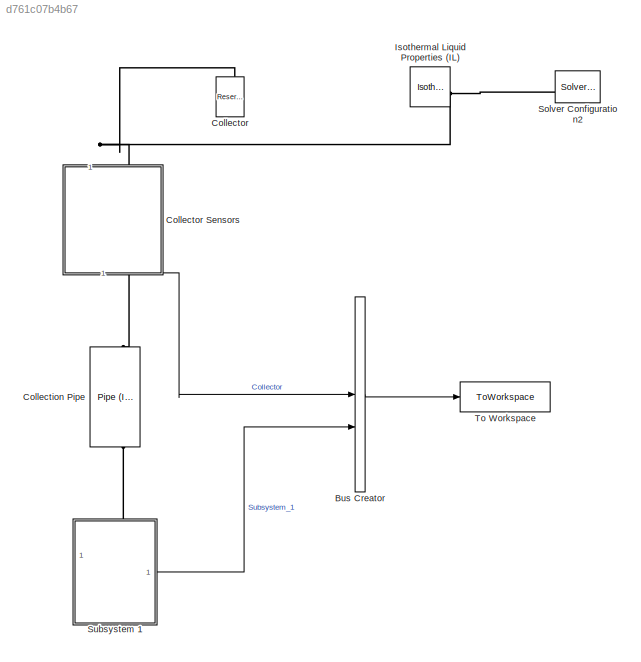
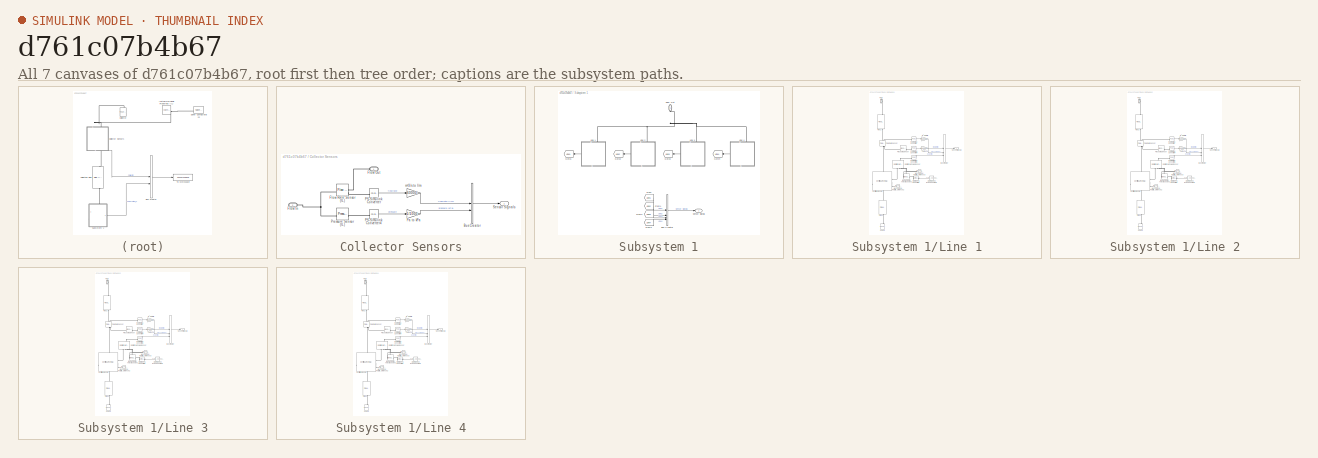
[diagram: thumbnail index - all 7 canvases of the model, root first then tree order]
MODEL slx_d761c07b4b67
KIND model
CONFIG AbsTol = 1e-3
CONFIG EnableMultiTasking = on
CONFIG FixedStep = auto
CONFIG InitFcn = load("smallscale_sample.mat")
CONFIG MaxStep = 1
CONFIG MinStep = auto
CONFIG RelTol = 1e-3
CONFIG SampleTimeConstraint = Unconstrained
CONFIG SolverName = VariableStepAuto
CONFIG StartTime = 0.0
CONFIG StopTime = 200
BLOCK [BusCreator] Bus Creator
  DisplayOption = bar
  InheritFromInputs = on
  Inputs = 2
BLOCK [Reference] Collection Pipe  REF=SimscapeFluids_lib/Isothermal Liquid/Pipes & Fittings/Pipe (IL)
  NameLocation = right
  SourceBlock = SimscapeFluids_lib/Isothermal Liquid/Pipes & Fittings/Pipe (IL)
  SourceType = Pipe (IL)
BLOCK [Reference] Collector  REF=fl_lib/Isothermal Liquid/Elements/Reservoir (IL)
  NameLocation = right
  SourceBlock = fl_lib/Isothermal Liquid/Elements/Reservoir (IL)
  SourceType = Reservoir (IL)
BLOCK [SubSystem] Collector Sensors
  NameLocation = left
  PortSchema = {"entries":[{"content":{"sides":[{"content":{"connectorIds":["LConn1"]},"type":"ConnectorPlacement.EquallySpacedRectSide","uuid":"9a2000d6-2d17-445f-a03d-cbfdaefbb972"},{"content":{"connectorIds":["RConn1"],"side":"RIGHT"},"type":"ConnectorPlacement.EquallySpacedRectSide","uuid":"ed958604-0480-4a1a-a86c-9fef878a0994"},{"content":{"side":"TOP"},"type":"ConnectorPlacement.EquallySpacedRectSide","uui...<+377ch>
BLOCK [BusCreator] Collector Sensors/Bus Creator
  DisplayOption = bar
  InheritFromInputs = on
  Inputs = 2
BLOCK [PMIOPort] Collector Sensors/Flow In
  Port = 2
  Side = Right
BLOCK [PMIOPort] Collector Sensors/Flow Out
  Side = Left
BLOCK [Reference] Collector Sensors/Flow Rate Sensor (IL)  REF=fl_lib/Isothermal Liquid/Sensors/Flow Rate Sensor
(IL)
  SourceBlock = fl_lib/Isothermal Liquid/Sensors/Flow Rate Sensor\n(IL)
  SourceType = Flow Rate Sensor\n(IL)
BLOCK [Reference] Collector Sensors/PS-Simulink Converter  REF=nesl_utility/PS-Simulink
Converter
  NameLocation = top
  SourceBlock = nesl_utility/PS-Simulink\nConverter
  SourceType = PS-Simulink\nConverter
BLOCK [Reference] Collector Sensors/PS-Simulink Converter4  REF=nesl_utility/PS-Simulink
Converter
  NameLocation = top
  SourceBlock = nesl_utility/PS-Simulink\nConverter
  SourceType = PS-Simulink\nConverter
BLOCK [Gain] Collector Sensors/Pa to kPa
  Gain = 1/1000
BLOCK [Reference] Collector Sensors/Pressure Sensor (IL)  REF=fl_lib/Isothermal Liquid/Sensors/Pressure Sensor (IL)
  SourceBlock = fl_lib/Isothermal Liquid/Sensors/Pressure Sensor (IL)
  SourceType = Pressure Sensor (IL)
BLOCK [Outport] Collector Sensors/Sensor Signals
BLOCK [Gain] Collector Sensors/m^3//s to l//m
  Gain = 60000
BLOCK [Reference] Isothermal Liquid Properties (IL)  REF=fl_lib/Isothermal Liquid/Utilities/Isothermal Liquid
Properties (IL)
  SourceBlock = fl_lib/Isothermal Liquid/Utilities/Isothermal Liquid\nProperties (IL)
  SourceType = Isothermal Liquid\nProperties (IL)
BLOCK [Reference] Solver Configuration2  REF=nesl_utility/Solver
Configuration
  SourceBlock = nesl_utility/Solver\nConfiguration
  SourceType = Solver\nConfiguration
BLOCK [SubSystem] Subsystem 1
  NameLocation = left
  PortSchema = {"entries":[{"content":{"sides":[{"content":{},"type":"ConnectorPlacement.EquallySpacedRectSide","uuid":"b516d03a-2269-47fc-9f64-c7351457ded4"},{"content":{"connectorIds":["Out1"],"side":"RIGHT"},"type":"ConnectorPlacement.EquallySpacedRectSide","uuid":"88a6b3e7-f300-486e-888d-e91ea018f8f8"},{"content":{"connectorIds":["LConn1"],"side":"TOP"},"type":"ConnectorPlacement.EquallySpacedRectSide","uuid...<+226ch>
BLOCK [BusCreator] Subsystem 1/Bus Creator
  DisplayOption = bar
  InheritFromInputs = on
  Inputs = 4
  NameLocation = top
BLOCK [PMIOPort] Subsystem 1/Flow Out
  NameLocation = right
  Side = Left
BLOCK [From] Subsystem 1/From
  GotoTag = Line1
BLOCK [From] Subsystem 1/From1
  GotoTag = Line2
BLOCK [From] Subsystem 1/From2
  GotoTag = Line3
BLOCK [From] Subsystem 1/From3
  GotoTag = Line4
BLOCK [Goto] Subsystem 1/Goto1
  GotoTag = Line1
BLOCK [Goto] Subsystem 1/Goto2
  GotoTag = Line2
BLOCK [Goto] Subsystem 1/Goto3
  GotoTag = Line3
BLOCK [Goto] Subsystem 1/Goto4
  GotoTag = Line4
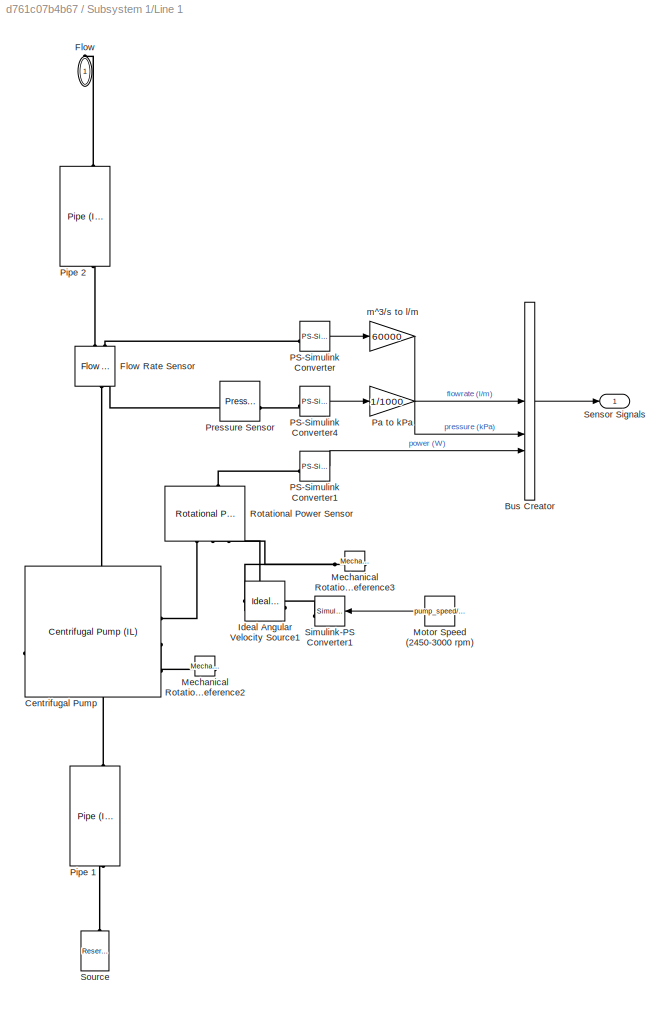
BLOCK [SubSystem] Subsystem 1/Line 1
  PortSchema = {"entries":[{"content":{"sides":[{"content":{},"type":"ConnectorPlacement.EquallySpacedRectSide","uuid":"b3564357-8f52-4949-91c1-42582344ea16"},{"content":{"connectorIds":["RConn1"],"side":"RIGHT"},"type":"ConnectorPlacement.EquallySpacedRectSide","uuid":"3df6ff4b-c089-47d9-9218-1d5835660c11"},{"content":{"connectorIds":["Out1"],"side":"TOP"},"type":"ConnectorPlacement.EquallySpacedRectSide","uuid...<+226ch>  <repeated x4 — deduplicated; at blocks: Line 1, Line 2, Line 3, Line 4>
BLOCK [BusCreator] Subsystem 1/Line 1/Bus Creator
  DisplayOption = bar
  InheritFromInputs = on
  Inputs = 3
BLOCK [Reference] Subsystem 1/Line 1/Centrifugal Pump  REF=SimscapeFluids_lib/Isothermal Liquid/Pumps & Motors/Centrifugal Pump
(IL)
  AttributesFormatString = Ebara:EVMS(L)1 10/0.55*
  SourceBlock = SimscapeFluids_lib/Isothermal Liquid/Pumps & Motors/Centrifugal Pump\n(IL)
  SourceType = Centrifugal Pump\n(IL)
  Tag = {'toolbox/physmod/fluids/fluids/SimscapeFluids_lib_parts';'Isothermal_Liquid/Pumps_and_Motors/Centrifugal_Pump__IL_/Ebara/EVMS_L_1_10_0_55_.xml'}
BLOCK [PMIOPort] Subsystem 1/Line 1/Flow
  NameLocation = right
  Side = Right
BLOCK [Reference] Subsystem 1/Line 1/Flow Rate Sensor  REF=fl_lib/Isothermal Liquid/Sensors/Flow Rate Sensor
(IL)
  NameLocation = left
  SourceBlock = fl_lib/Isothermal Liquid/Sensors/Flow Rate Sensor\n(IL)
  SourceType = Flow Rate Sensor\n(IL)
BLOCK [Reference] Subsystem 1/Line 1/Ideal Angular Velocity Source1  REF=fl_lib/Mechanical/Mechanical Sources/Ideal Angular
Velocity Source
  NameLocation = top
  SourceBlock = fl_lib/Mechanical/Mechanical Sources/Ideal Angular\nVelocity Source
  SourceType = Ideal Angular\nVelocity Source
BLOCK [Reference] Subsystem 1/Line 1/Mechanical Rotational Reference2  REF=fl_lib/Mechanical/Rotational Elements/Mechanical
Rotational Reference
  NameLocation = top
  SourceBlock = fl_lib/Mechanical/Rotational Elements/Mechanical\nRotational Reference
  SourceType = Mechanical\nRotational Reference
BLOCK [Reference] Subsystem 1/Line 1/Mechanical Rotational Reference3  REF=fl_lib/Mechanical/Rotational Elements/Mechanical
Rotational Reference
  NameLocation = top
  SourceBlock = fl_lib/Mechanical/Rotational Elements/Mechanical\nRotational Reference
  SourceType = Mechanical\nRotational Reference
BLOCK [Constant] Subsystem 1/Line 1/Motor Speed (2450-3000 rpm)
  Value = pump_speed/60
BLOCK [Reference] Subsystem 1/Line 1/PS-Simulink Converter  REF=nesl_utility/PS-Simulink
Converter
  NameLocation = top
  SourceBlock = nesl_utility/PS-Simulink\nConverter
  SourceType = PS-Simulink\nConverter
BLOCK [Reference] Subsystem 1/Line 1/PS-Simulink Converter1  REF=nesl_utility/PS-Simulink
Converter
  NameLocation = top
  SourceBlock = nesl_utility/PS-Simulink\nConverter
  SourceType = PS-Simulink\nConverter
BLOCK [Reference] Subsystem 1/Line 1/PS-Simulink Converter4  REF=nesl_utility/PS-Simulink
Converter
  NameLocation = top
  SourceBlock = nesl_utility/PS-Simulink\nConverter
  SourceType = PS-Simulink\nConverter
BLOCK [Gain] Subsystem 1/Line 1/Pa to kPa
  Gain = 1/1000
  NameLocation = top
BLOCK [Reference] Subsystem 1/Line 1/Pipe 1  REF=SimscapeFluids_lib/Isothermal Liquid/Pipes & Fittings/Pipe (IL)
  NameLocation = right
  SourceBlock = SimscapeFluids_lib/Isothermal Liquid/Pipes & Fittings/Pipe (IL)
  SourceType = Pipe (IL)
BLOCK [Reference] Subsystem 1/Line 1/Pipe 2  REF=SimscapeFluids_lib/Isothermal Liquid/Pipes & Fittings/Pipe (IL)
  NameLocation = left
  SourceBlock = SimscapeFluids_lib/Isothermal Liquid/Pipes & Fittings/Pipe (IL)
  SourceType = Pipe (IL)
BLOCK [Reference] Subsystem 1/Line 1/Pressure Sensor  REF=fl_lib/Isothermal Liquid/Sensors/Pressure Sensor (IL)
  NameLocation = top
  SourceBlock = fl_lib/Isothermal Liquid/Sensors/Pressure Sensor (IL)
  SourceType = Pressure Sensor (IL)
BLOCK [Reference] Subsystem 1/Line 1/Rotational Power Sensor   REF=sdl_lib/Sensors/Rotational Power
Sensor
  NameLocation = right
  SourceBlock = sdl_lib/Sensors/Rotational Power\nSensor
  SourceType = Rotational Power\nSensor
BLOCK [Outport] Subsystem 1/Line 1/Sensor Signals
  NameLocation = top
BLOCK [Reference] Subsystem 1/Line 1/Simulink-PS Converter1  REF=nesl_utility/Simulink-PS
Converter
  SourceBlock = nesl_utility/Simulink-PS\nConverter
  SourceType = Simulink-PS\nConverter
BLOCK [Reference] Subsystem 1/Line 1/Source  REF=fl_lib/Isothermal Liquid/Elements/Reservoir (IL)
  NameLocation = right
  SourceBlock = fl_lib/Isothermal Liquid/Elements/Reservoir (IL)
  SourceType = Reservoir (IL)
BLOCK [Gain] Subsystem 1/Line 1/m^3//s to l//m
  Gain = 60000
  NameLocation = top
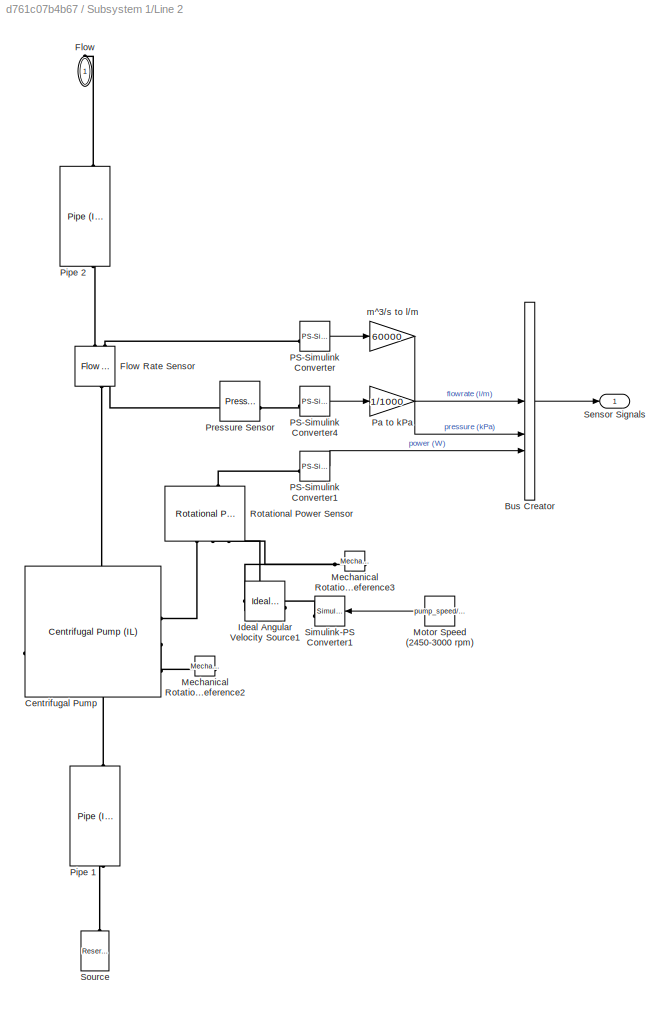
BLOCK [SubSystem] Subsystem 1/Line 2
BLOCK [BusCreator] Subsystem 1/Line 2/Bus Creator
  DisplayOption = bar
  InheritFromInputs = on
  Inputs = 3
BLOCK [Reference] Subsystem 1/Line 2/Centrifugal Pump  REF=SimscapeFluids_lib/Isothermal Liquid/Pumps & Motors/Centrifugal Pump
(IL)
  AttributesFormatString = Ebara:EVMS(L)1 10/0.55*
  SourceBlock = SimscapeFluids_lib/Isothermal Liquid/Pumps & Motors/Centrifugal Pump\n(IL)
  SourceType = Centrifugal Pump\n(IL)
  Tag = {'toolbox/physmod/fluids/fluids/SimscapeFluids_lib_parts';'Isothermal_Liquid/Pumps_and_Motors/Centrifugal_Pump__IL_/Ebara/EVMS_L_1_10_0_55_.xml'}
BLOCK [PMIOPort] Subsystem 1/Line 2/Flow
  NameLocation = right
  Side = Right
BLOCK [Reference] Subsystem 1/Line 2/Flow Rate Sensor  REF=fl_lib/Isothermal Liquid/Sensors/Flow Rate Sensor
(IL)
  NameLocation = left
  SourceBlock = fl_lib/Isothermal Liquid/Sensors/Flow Rate Sensor\n(IL)
  SourceType = Flow Rate Sensor\n(IL)
BLOCK [Reference] Subsystem 1/Line 2/Ideal Angular Velocity Source1  REF=fl_lib/Mechanical/Mechanical Sources/Ideal Angular
Velocity Source
  NameLocation = top
  SourceBlock = fl_lib/Mechanical/Mechanical Sources/Ideal Angular\nVelocity Source
  SourceType = Ideal Angular\nVelocity Source
BLOCK [Reference] Subsystem 1/Line 2/Mechanical Rotational Reference2  REF=fl_lib/Mechanical/Rotational Elements/Mechanical
Rotational Reference
  NameLocation = top
  SourceBlock = fl_lib/Mechanical/Rotational Elements/Mechanical\nRotational Reference
  SourceType = Mechanical\nRotational Reference
BLOCK [Reference] Subsystem 1/Line 2/Mechanical Rotational Reference3  REF=fl_lib/Mechanical/Rotational Elements/Mechanical
Rotational Reference
  NameLocation = top
  SourceBlock = fl_lib/Mechanical/Rotational Elements/Mechanical\nRotational Reference
  SourceType = Mechanical\nRotational Reference
BLOCK [Constant] Subsystem 1/Line 2/Motor Speed (2450-3000 rpm)
  Value = pump_speed/60
BLOCK [Reference] Subsystem 1/Line 2/PS-Simulink Converter  REF=nesl_utility/PS-Simulink
Converter
  NameLocation = top
  SourceBlock = nesl_utility/PS-Simulink\nConverter
  SourceType = PS-Simulink\nConverter
BLOCK [Reference] Subsystem 1/Line 2/PS-Simulink Converter1  REF=nesl_utility/PS-Simulink
Converter
  NameLocation = top
  SourceBlock = nesl_utility/PS-Simulink\nConverter
  SourceType = PS-Simulink\nConverter
BLOCK [Reference] Subsystem 1/Line 2/PS-Simulink Converter4  REF=nesl_utility/PS-Simulink
Converter
  NameLocation = top
  SourceBlock = nesl_utility/PS-Simulink\nConverter
  SourceType = PS-Simulink\nConverter
BLOCK [Gain] Subsystem 1/Line 2/Pa to kPa
  Gain = 1/1000
  NameLocation = top
BLOCK [Reference] Subsystem 1/Line 2/Pipe 1  REF=SimscapeFluids_lib/Isothermal Liquid/Pipes & Fittings/Pipe (IL)
  NameLocation = right
  SourceBlock = SimscapeFluids_lib/Isothermal Liquid/Pipes & Fittings/Pipe (IL)
  SourceType = Pipe (IL)
BLOCK [Reference] Subsystem 1/Line 2/Pipe 2  REF=SimscapeFluids_lib/Isothermal Liquid/Pipes & Fittings/Pipe (IL)
  NameLocation = left
  SourceBlock = SimscapeFluids_lib/Isothermal Liquid/Pipes & Fittings/Pipe (IL)
  SourceType = Pipe (IL)
BLOCK [Reference] Subsystem 1/Line 2/Pressure Sensor  REF=fl_lib/Isothermal Liquid/Sensors/Pressure Sensor (IL)
  NameLocation = top
  SourceBlock = fl_lib/Isothermal Liquid/Sensors/Pressure Sensor (IL)
  SourceType = Pressure Sensor (IL)
BLOCK [Reference] Subsystem 1/Line 2/Rotational Power Sensor   REF=sdl_lib/Sensors/Rotational Power
Sensor
  NameLocation = right
  SourceBlock = sdl_lib/Sensors/Rotational Power\nSensor
  SourceType = Rotational Power\nSensor
BLOCK [Outport] Subsystem 1/Line 2/Sensor Signals
  NameLocation = top
BLOCK [Reference] Subsystem 1/Line 2/Simulink-PS Converter1  REF=nesl_utility/Simulink-PS
Converter
  SourceBlock = nesl_utility/Simulink-PS\nConverter
  SourceType = Simulink-PS\nConverter
BLOCK [Reference] Subsystem 1/Line 2/Source  REF=fl_lib/Isothermal Liquid/Elements/Reservoir (IL)
  NameLocation = right
  SourceBlock = fl_lib/Isothermal Liquid/Elements/Reservoir (IL)
  SourceType = Reservoir (IL)
BLOCK [Gain] Subsystem 1/Line 2/m^3//s to l//m
  Gain = 60000
  NameLocation = top
BLOCK [SubSystem] Subsystem 1/Line 3
BLOCK [BusCreator] Subsystem 1/Line 3/Bus Creator
  DisplayOption = bar
  InheritFromInputs = on
  Inputs = 3
BLOCK [Reference] Subsystem 1/Line 3/Centrifugal Pump  REF=SimscapeFluids_lib/Isothermal Liquid/Pumps & Motors/Centrifugal Pump
(IL)
  AttributesFormatString = Ebara:EVMS(L)1 10/0.55*
  SourceBlock = SimscapeFluids_lib/Isothermal Liquid/Pumps & Motors/Centrifugal Pump\n(IL)
  SourceType = Centrifugal Pump\n(IL)
  Tag = {'toolbox/physmod/fluids/fluids/SimscapeFluids_lib_parts';'Isothermal_Liquid/Pumps_and_Motors/Centrifugal_Pump__IL_/Ebara/EVMS_L_1_10_0_55_.xml'}
BLOCK [PMIOPort] Subsystem 1/Line 3/Flow
  NameLocation = right
  Side = Right
BLOCK [Reference] Subsystem 1/Line 3/Flow Rate Sensor  REF=fl_lib/Isothermal Liquid/Sensors/Flow Rate Sensor
(IL)
  NameLocation = left
  SourceBlock = fl_lib/Isothermal Liquid/Sensors/Flow Rate Sensor\n(IL)
  SourceType = Flow Rate Sensor\n(IL)
BLOCK [Reference] Subsystem 1/Line 3/Ideal Angular Velocity Source1  REF=fl_lib/Mechanical/Mechanical Sources/Ideal Angular
Velocity Source
  NameLocation = top
  SourceBlock = fl_lib/Mechanical/Mechanical Sources/Ideal Angular\nVelocity Source
  SourceType = Ideal Angular\nVelocity Source
BLOCK [Reference] Subsystem 1/Line 3/Mechanical Rotational Reference2  REF=fl_lib/Mechanical/Rotational Elements/Mechanical
Rotational Reference
  NameLocation = top
  SourceBlock = fl_lib/Mechanical/Rotational Elements/Mechanical\nRotational Reference
  SourceType = Mechanical\nRotational Reference
BLOCK [Reference] Subsystem 1/Line 3/Mechanical Rotational Reference3  REF=fl_lib/Mechanical/Rotational Elements/Mechanical
Rotational Reference
  NameLocation = top
  SourceBlock = fl_lib/Mechanical/Rotational Elements/Mechanical\nRotational Reference
  SourceType = Mechanical\nRotational Reference
BLOCK [Constant] Subsystem 1/Line 3/Motor Speed (2450-3000 rpm)
  Value = pump_speed/60
BLOCK [Reference] Subsystem 1/Line 3/PS-Simulink Converter  REF=nesl_utility/PS-Simulink
Converter
  NameLocation = top
  SourceBlock = nesl_utility/PS-Simulink\nConverter
  SourceType = PS-Simulink\nConverter
BLOCK [Reference] Subsystem 1/Line 3/PS-Simulink Converter1  REF=nesl_utility/PS-Simulink
Converter
  NameLocation = top
  SourceBlock = nesl_utility/PS-Simulink\nConverter
  SourceType = PS-Simulink\nConverter
BLOCK [Reference] Subsystem 1/Line 3/PS-Simulink Converter4  REF=nesl_utility/PS-Simulink
Converter
  NameLocation = top
  SourceBlock = nesl_utility/PS-Simulink\nConverter
  SourceType = PS-Simulink\nConverter
BLOCK [Gain] Subsystem 1/Line 3/Pa to kPa
  Gain = 1/1000
  NameLocation = top
BLOCK [Reference] Subsystem 1/Line 3/Pipe 1  REF=SimscapeFluids_lib/Isothermal Liquid/Pipes & Fittings/Pipe (IL)
  NameLocation = right
  SourceBlock = SimscapeFluids_lib/Isothermal Liquid/Pipes & Fittings/Pipe (IL)
  SourceType = Pipe (IL)
BLOCK [Reference] Subsystem 1/Line 3/Pipe 2  REF=SimscapeFluids_lib/Isothermal Liquid/Pipes & Fittings/Pipe (IL)
  NameLocation = left
  SourceBlock = SimscapeFluids_lib/Isothermal Liquid/Pipes & Fittings/Pipe (IL)
  SourceType = Pipe (IL)
BLOCK [Reference] Subsystem 1/Line 3/Pressure Sensor  REF=fl_lib/Isothermal Liquid/Sensors/Pressure Sensor (IL)
  NameLocation = top
  SourceBlock = fl_lib/Isothermal Liquid/Sensors/Pressure Sensor (IL)
  SourceType = Pressure Sensor (IL)
BLOCK [Reference] Subsystem 1/Line 3/Rotational Power Sensor   REF=sdl_lib/Sensors/Rotational Power
Sensor
  NameLocation = right
  SourceBlock = sdl_lib/Sensors/Rotational Power\nSensor
  SourceType = Rotational Power\nSensor
BLOCK [Outport] Subsystem 1/Line 3/Sensor Signals
  NameLocation = top
BLOCK [Reference] Subsystem 1/Line 3/Simulink-PS Converter1  REF=nesl_utility/Simulink-PS
Converter
  SourceBlock = nesl_utility/Simulink-PS\nConverter
  SourceType = Simulink-PS\nConverter
BLOCK [Reference] Subsystem 1/Line 3/Source  REF=fl_lib/Isothermal Liquid/Elements/Reservoir (IL)
  NameLocation = right
  SourceBlock = fl_lib/Isothermal Liquid/Elements/Reservoir (IL)
  SourceType = Reservoir (IL)
BLOCK [Gain] Subsystem 1/Line 3/m^3//s to l//m
  Gain = 60000
  NameLocation = top
BLOCK [SubSystem] Subsystem 1/Line 4
BLOCK [BusCreator] Subsystem 1/Line 4/Bus Creator
  DisplayOption = bar
  InheritFromInputs = on
  Inputs = 3
BLOCK [Reference] Subsystem 1/Line 4/Centrifugal Pump  REF=SimscapeFluids_lib/Isothermal Liquid/Pumps & Motors/Centrifugal Pump
(IL)
  AttributesFormatString = Ebara:EVMS(L)1 10/0.55*
  SourceBlock = SimscapeFluids_lib/Isothermal Liquid/Pumps & Motors/Centrifugal Pump\n(IL)
  SourceType = Centrifugal Pump\n(IL)
  Tag = {'toolbox/physmod/fluids/fluids/SimscapeFluids_lib_parts';'Isothermal_Liquid/Pumps_and_Motors/Centrifugal_Pump__IL_/Ebara/EVMS_L_1_10_0_55_.xml'}
BLOCK [PMIOPort] Subsystem 1/Line 4/Flow
  NameLocation = right
  Side = Right
BLOCK [Reference] Subsystem 1/Line 4/Flow Rate Sensor  REF=fl_lib/Isothermal Liquid/Sensors/Flow Rate Sensor
(IL)
  NameLocation = left
  SourceBlock = fl_lib/Isothermal Liquid/Sensors/Flow Rate Sensor\n(IL)
  SourceType = Flow Rate Sensor\n(IL)
BLOCK [Reference] Subsystem 1/Line 4/Ideal Angular Velocity Source1  REF=fl_lib/Mechanical/Mechanical Sources/Ideal Angular
Velocity Source
  NameLocation = top
  SourceBlock = fl_lib/Mechanical/Mechanical Sources/Ideal Angular\nVelocity Source
  SourceType = Ideal Angular\nVelocity Source
BLOCK [Reference] Subsystem 1/Line 4/Mechanical Rotational Reference2  REF=fl_lib/Mechanical/Rotational Elements/Mechanical
Rotational Reference
  NameLocation = top
  SourceBlock = fl_lib/Mechanical/Rotational Elements/Mechanical\nRotational Reference
  SourceType = Mechanical\nRotational Reference
BLOCK [Reference] Subsystem 1/Line 4/Mechanical Rotational Reference3  REF=fl_lib/Mechanical/Rotational Elements/Mechanical
Rotational Reference
  NameLocation = top
  SourceBlock = fl_lib/Mechanical/Rotational Elements/Mechanical\nRotational Reference
  SourceType = Mechanical\nRotational Reference
BLOCK [Constant] Subsystem 1/Line 4/Motor Speed (2450-3000 rpm)
  Value = pump_speed/60
BLOCK [Reference] Subsystem 1/Line 4/PS-Simulink Converter  REF=nesl_utility/PS-Simulink
Converter
  NameLocation = top
  SourceBlock = nesl_utility/PS-Simulink\nConverter
  SourceType = PS-Simulink\nConverter
BLOCK [Reference] Subsystem 1/Line 4/PS-Simulink Converter1  REF=nesl_utility/PS-Simulink
Converter
  NameLocation = top
  SourceBlock = nesl_utility/PS-Simulink\nConverter
  SourceType = PS-Simulink\nConverter
BLOCK [Reference] Subsystem 1/Line 4/PS-Simulink Converter4  REF=nesl_utility/PS-Simulink
Converter
  NameLocation = top
  SourceBlock = nesl_utility/PS-Simulink\nConverter
  SourceType = PS-Simulink\nConverter
BLOCK [Gain] Subsystem 1/Line 4/Pa to kPa
  Gain = 1/1000
  NameLocation = top
BLOCK [Reference] Subsystem 1/Line 4/Pipe 1  REF=SimscapeFluids_lib/Isothermal Liquid/Pipes & Fittings/Pipe (IL)
  NameLocation = right
  SourceBlock = SimscapeFluids_lib/Isothermal Liquid/Pipes & Fittings/Pipe (IL)
  SourceType = Pipe (IL)
BLOCK [Reference] Subsystem 1/Line 4/Pipe 2  REF=SimscapeFluids_lib/Isothermal Liquid/Pipes & Fittings/Pipe (IL)
  NameLocation = left
  SourceBlock = SimscapeFluids_lib/Isothermal Liquid/Pipes & Fittings/Pipe (IL)
  SourceType = Pipe (IL)
BLOCK [Reference] Subsystem 1/Line 4/Pressure Sensor  REF=fl_lib/Isothermal Liquid/Sensors/Pressure Sensor (IL)
  NameLocation = top
  SourceBlock = fl_lib/Isothermal Liquid/Sensors/Pressure Sensor (IL)
  SourceType = Pressure Sensor (IL)
BLOCK [Reference] Subsystem 1/Line 4/Rotational Power Sensor   REF=sdl_lib/Sensors/Rotational Power
Sensor
  NameLocation = right
  SourceBlock = sdl_lib/Sensors/Rotational Power\nSensor
  SourceType = Rotational Power\nSensor
BLOCK [Outport] Subsystem 1/Line 4/Sensor Signals
  NameLocation = top
BLOCK [Reference] Subsystem 1/Line 4/Simulink-PS Converter1  REF=nesl_utility/Simulink-PS
Converter
  SourceBlock = nesl_utility/Simulink-PS\nConverter
  SourceType = Simulink-PS\nConverter
BLOCK [Reference] Subsystem 1/Line 4/Source  REF=fl_lib/Isothermal Liquid/Elements/Reservoir (IL)
  NameLocation = right
  SourceBlock = fl_lib/Isothermal Liquid/Elements/Reservoir (IL)
  SourceType = Reservoir (IL)
BLOCK [Gain] Subsystem 1/Line 4/m^3//s to l//m
  Gain = 60000
  NameLocation = top
BLOCK [Outport] Subsystem 1/Sensor Signals
BLOCK [ToWorkspace] To Workspace
  FixptAsFi = on
  MaxDataPoints = inf
  SampleTime = -1
  SaveFormat = Timeseries
  VariableName = signals
LINE Bus Creator:1 -> To Workspace:1
LINE Collector Sensors/Bus Creator:1 -> Collector Sensors/Sensor Signals:1
LINE Collector Sensors/PS-Simulink Converter4:1 -> Collector Sensors/Pa to kPa:1
LINE Collector Sensors/PS-Simulink Converter:1 -> Collector Sensors/m^3//s to l//m:1
LINE Collector Sensors/Pa to kPa:1 -> Collector Sensors/Bus Creator:2
LINE Collector Sensors/m^3//s to l//m:1 -> Collector Sensors/Bus Creator:1
LINE Collector Sensors:1 -> Bus Creator:1
LINE Subsystem 1/Bus Creator:1 -> Subsystem 1/Sensor Signals:1
LINE Subsystem 1/From1:1 -> Subsystem 1/Bus Creator:2
LINE Subsystem 1/From2:1 -> Subsystem 1/Bus Creator:3
LINE Subsystem 1/From3:1 -> Subsystem 1/Bus Creator:4
LINE Subsystem 1/From:1 -> Subsystem 1/Bus Creator:1
LINE Subsystem 1/Line 1/Bus Creator:1 -> Subsystem 1/Line 1/Sensor Signals:1
LINE Subsystem 1/Line 1/Motor Speed (2450-3000 rpm):1 -> Subsystem 1/Line 1/Simulink-PS Converter1:1
LINE Subsystem 1/Line 1/PS-Simulink Converter1:1 -> Subsystem 1/Line 1/Bus Creator:3
LINE Subsystem 1/Line 1/PS-Simulink Converter4:1 -> Subsystem 1/Line 1/Pa to kPa:1
LINE Subsystem 1/Line 1/PS-Simulink Converter:1 -> Subsystem 1/Line 1/m^3//s to l//m:1
LINE Subsystem 1/Line 1/Pa to kPa:1 -> Subsystem 1/Line 1/Bus Creator:2
LINE Subsystem 1/Line 1/m^3//s to l//m:1 -> Subsystem 1/Line 1/Bus Creator:1
LINE Subsystem 1/Line 1:1 -> Subsystem 1/Goto1:1
LINE Subsystem 1/Line 2/Bus Creator:1 -> Subsystem 1/Line 2/Sensor Signals:1
LINE Subsystem 1/Line 2/Motor Speed (2450-3000 rpm):1 -> Subsystem 1/Line 2/Simulink-PS Converter1:1
LINE Subsystem 1/Line 2/PS-Simulink Converter1:1 -> Subsystem 1/Line 2/Bus Creator:3
LINE Subsystem 1/Line 2/PS-Simulink Converter4:1 -> Subsystem 1/Line 2/Pa to kPa:1
LINE Subsystem 1/Line 2/PS-Simulink Converter:1 -> Subsystem 1/Line 2/m^3//s to l//m:1
LINE Subsystem 1/Line 2/Pa to kPa:1 -> Subsystem 1/Line 2/Bus Creator:2
LINE Subsystem 1/Line 2/m^3//s to l//m:1 -> Subsystem 1/Line 2/Bus Creator:1
LINE Subsystem 1/Line 2:1 -> Subsystem 1/Goto2:1
LINE Subsystem 1/Line 3/Bus Creator:1 -> Subsystem 1/Line 3/Sensor Signals:1
LINE Subsystem 1/Line 3/Motor Speed (2450-3000 rpm):1 -> Subsystem 1/Line 3/Simulink-PS Converter1:1
LINE Subsystem 1/Line 3/PS-Simulink Converter1:1 -> Subsystem 1/Line 3/Bus Creator:3
LINE Subsystem 1/Line 3/PS-Simulink Converter4:1 -> Subsystem 1/Line 3/Pa to kPa:1
LINE Subsystem 1/Line 3/PS-Simulink Converter:1 -> Subsystem 1/Line 3/m^3//s to l//m:1
LINE Subsystem 1/Line 3/Pa to kPa:1 -> Subsystem 1/Line 3/Bus Creator:2
LINE Subsystem 1/Line 3/m^3//s to l//m:1 -> Subsystem 1/Line 3/Bus Creator:1
LINE Subsystem 1/Line 3:1 -> Subsystem 1/Goto3:1
LINE Subsystem 1/Line 4/Bus Creator:1 -> Subsystem 1/Line 4/Sensor Signals:1
LINE Subsystem 1/Line 4/Motor Speed (2450-3000 rpm):1 -> Subsystem 1/Line 4/Simulink-PS Converter1:1
LINE Subsystem 1/Line 4/PS-Simulink Converter1:1 -> Subsystem 1/Line 4/Bus Creator:3
LINE Subsystem 1/Line 4/PS-Simulink Converter4:1 -> Subsystem 1/Line 4/Pa to kPa:1
LINE Subsystem 1/Line 4/PS-Simulink Converter:1 -> Subsystem 1/Line 4/m^3//s to l//m:1
LINE Subsystem 1/Line 4/Pa to kPa:1 -> Subsystem 1/Line 4/Bus Creator:2
LINE Subsystem 1/Line 4/m^3//s to l//m:1 -> Subsystem 1/Line 4/Bus Creator:1
LINE Subsystem 1/Line 4:1 -> Subsystem 1/Goto4:1
LINE Subsystem 1:1 -> Bus Creator:2
PLINE Collection Pipe:LConn1 -- Subsystem 1:LConn1
PLINE Collection Pipe:RConn1 -- Collector Sensors:RConn1
PNET net1: Collector Sensors/Flow In:RConn1 -- Collector Sensors/Flow Rate Sensor (IL):LConn1 -- Collector Sensors/Pressure Sensor (IL):LConn1
PLINE Collector Sensors/Flow Out:RConn1 -- Collector Sensors/Flow Rate Sensor (IL):RConn1
PLINE Collector Sensors/Flow Rate Sensor (IL):RConn2 -- Collector Sensors/PS-Simulink Converter:LConn1
PLINE Collector Sensors/PS-Simulink Converter4:LConn1 -- Collector Sensors/Pressure Sensor (IL):RConn1
PNET net2: Collector Sensors:LConn1 -- Collector:LConn1 -- Isothermal Liquid Properties (IL):RConn1 -- Solver Configuration2:RConn1
PNET net3: Subsystem 1/Flow Out:RConn1 -- Subsystem 1/Line 1:RConn1 -- Subsystem 1/Line 2:RConn1 -- Subsystem 1/Line 3:RConn1 -- Subsystem 1/Line 4:RConn1
PNET net4: Subsystem 1/Line 1/Centrifugal Pump:LConn1 -- Subsystem 1/Line 1/Flow Rate Sensor:LConn1 -- Subsystem 1/Line 1/Pressure Sensor:LConn1
PLINE Subsystem 1/Line 1/Centrifugal Pump:RConn1 -- Subsystem 1/Line 1/Rotational Power Sensor :LConn1
PLINE Subsystem 1/Line 1/Centrifugal Pump:RConn2 -- Subsystem 1/Line 1/Mechanical Rotational Reference2:LConn1
PLINE Subsystem 1/Line 1/Centrifugal Pump:RConn3 -- Subsystem 1/Line 1/Pipe 1:RConn1
PLINE Subsystem 1/Line 1/Flow Rate Sensor:RConn1 -- Subsystem 1/Line 1/Pipe 2:LConn1
PLINE Subsystem 1/Line 1/Flow Rate Sensor:RConn2 -- Subsystem 1/Line 1/PS-Simulink Converter:LConn1
PLINE Subsystem 1/Line 1/Flow:RConn1 -- Subsystem 1/Line 1/Pipe 2:RConn1
PLINE Subsystem 1/Line 1/Ideal Angular Velocity Source1:LConn1 -- Subsystem 1/Line 1/Rotational Power Sensor :LConn2
PLINE Subsystem 1/Line 1/Ideal Angular Velocity Source1:RConn1 -- Subsystem 1/Line 1/Simulink-PS Converter1:RConn1
PNET net5: Subsystem 1/Line 1/Ideal Angular Velocity Source1:RConn2 -- Subsystem 1/Line 1/Mechanical Rotational Reference3:LConn1 -- Subsystem 1/Line 1/Rotational Power Sensor :LConn3
PLINE Subsystem 1/Line 1/PS-Simulink Converter1:LConn1 -- Subsystem 1/Line 1/Rotational Power Sensor :RConn1
PLINE Subsystem 1/Line 1/PS-Simulink Converter4:LConn1 -- Subsystem 1/Line 1/Pressure Sensor:RConn1
PLINE Subsystem 1/Line 1/Pipe 1:LConn1 -- Subsystem 1/Line 1/Source:LConn1
PNET net6: Subsystem 1/Line 2/Centrifugal Pump:LConn1 -- Subsystem 1/Line 2/Flow Rate Sensor:LConn1 -- Subsystem 1/Line 2/Pressure Sensor:LConn1
PLINE Subsystem 1/Line 2/Centrifugal Pump:RConn1 -- Subsystem 1/Line 2/Rotational Power Sensor :LConn1
PLINE Subsystem 1/Line 2/Centrifugal Pump:RConn2 -- Subsystem 1/Line 2/Mechanical Rotational Reference2:LConn1
PLINE Subsystem 1/Line 2/Centrifugal Pump:RConn3 -- Subsystem 1/Line 2/Pipe 1:RConn1
PLINE Subsystem 1/Line 2/Flow Rate Sensor:RConn1 -- Subsystem 1/Line 2/Pipe 2:LConn1
PLINE Subsystem 1/Line 2/Flow Rate Sensor:RConn2 -- Subsystem 1/Line 2/PS-Simulink Converter:LConn1
PLINE Subsystem 1/Line 2/Flow:RConn1 -- Subsystem 1/Line 2/Pipe 2:RConn1
PLINE Subsystem 1/Line 2/Ideal Angular Velocity Source1:LConn1 -- Subsystem 1/Line 2/Rotational Power Sensor :LConn2
PLINE Subsystem 1/Line 2/Ideal Angular Velocity Source1:RConn1 -- Subsystem 1/Line 2/Simulink-PS Converter1:RConn1
PNET net7: Subsystem 1/Line 2/Ideal Angular Velocity Source1:RConn2 -- Subsystem 1/Line 2/Mechanical Rotational Reference3:LConn1 -- Subsystem 1/Line 2/Rotational Power Sensor :LConn3
PLINE Subsystem 1/Line 2/PS-Simulink Converter1:LConn1 -- Subsystem 1/Line 2/Rotational Power Sensor :RConn1
PLINE Subsystem 1/Line 2/PS-Simulink Converter4:LConn1 -- Subsystem 1/Line 2/Pressure Sensor:RConn1
PLINE Subsystem 1/Line 2/Pipe 1:LConn1 -- Subsystem 1/Line 2/Source:LConn1
PNET net8: Subsystem 1/Line 3/Centrifugal Pump:LConn1 -- Subsystem 1/Line 3/Flow Rate Sensor:LConn1 -- Subsystem 1/Line 3/Pressure Sensor:LConn1
PLINE Subsystem 1/Line 3/Centrifugal Pump:RConn1 -- Subsystem 1/Line 3/Rotational Power Sensor :LConn1
PLINE Subsystem 1/Line 3/Centrifugal Pump:RConn2 -- Subsystem 1/Line 3/Mechanical Rotational Reference2:LConn1
PLINE Subsystem 1/Line 3/Centrifugal Pump:RConn3 -- Subsystem 1/Line 3/Pipe 1:RConn1
PLINE Subsystem 1/Line 3/Flow Rate Sensor:RConn1 -- Subsystem 1/Line 3/Pipe 2:LConn1
PLINE Subsystem 1/Line 3/Flow Rate Sensor:RConn2 -- Subsystem 1/Line 3/PS-Simulink Converter:LConn1
PLINE Subsystem 1/Line 3/Flow:RConn1 -- Subsystem 1/Line 3/Pipe 2:RConn1
PLINE Subsystem 1/Line 3/Ideal Angular Velocity Source1:LConn1 -- Subsystem 1/Line 3/Rotational Power Sensor :LConn2
PLINE Subsystem 1/Line 3/Ideal Angular Velocity Source1:RConn1 -- Subsystem 1/Line 3/Simulink-PS Converter1:RConn1
PNET net9: Subsystem 1/Line 3/Ideal Angular Velocity Source1:RConn2 -- Subsystem 1/Line 3/Mechanical Rotational Reference3:LConn1 -- Subsystem 1/Line 3/Rotational Power Sensor :LConn3
PLINE Subsystem 1/Line 3/PS-Simulink Converter1:LConn1 -- Subsystem 1/Line 3/Rotational Power Sensor :RConn1
PLINE Subsystem 1/Line 3/PS-Simulink Converter4:LConn1 -- Subsystem 1/Line 3/Pressure Sensor:RConn1
PLINE Subsystem 1/Line 3/Pipe 1:LConn1 -- Subsystem 1/Line 3/Source:LConn1
PNET net10: Subsystem 1/Line 4/Centrifugal Pump:LConn1 -- Subsystem 1/Line 4/Flow Rate Sensor:LConn1 -- Subsystem 1/Line 4/Pressure Sensor:LConn1
PLINE Subsystem 1/Line 4/Centrifugal Pump:RConn1 -- Subsystem 1/Line 4/Rotational Power Sensor :LConn1
PLINE Subsystem 1/Line 4/Centrifugal Pump:RConn2 -- Subsystem 1/Line 4/Mechanical Rotational Reference2:LConn1
PLINE Subsystem 1/Line 4/Centrifugal Pump:RConn3 -- Subsystem 1/Line 4/Pipe 1:RConn1
PLINE Subsystem 1/Line 4/Flow Rate Sensor:RConn1 -- Subsystem 1/Line 4/Pipe 2:LConn1
PLINE Subsystem 1/Line 4/Flow Rate Sensor:RConn2 -- Subsystem 1/Line 4/PS-Simulink Converter:LConn1
PLINE Subsystem 1/Line 4/Flow:RConn1 -- Subsystem 1/Line 4/Pipe 2:RConn1
PLINE Subsystem 1/Line 4/Ideal Angular Velocity Source1:LConn1 -- Subsystem 1/Line 4/Rotational Power Sensor :LConn2
PLINE Subsystem 1/Line 4/Ideal Angular Velocity Source1:RConn1 -- Subsystem 1/Line 4/Simulink-PS Converter1:RConn1
PNET net11: Subsystem 1/Line 4/Ideal Angular Velocity Source1:RConn2 -- Subsystem 1/Line 4/Mechanical Rotational Reference3:LConn1 -- Subsystem 1/Line 4/Rotational Power Sensor :LConn3
PLINE Subsystem 1/Line 4/PS-Simulink Converter1:LConn1 -- Subsystem 1/Line 4/Rotational Power Sensor :RConn1
PLINE Subsystem 1/Line 4/PS-Simulink Converter4:LConn1 -- Subsystem 1/Line 4/Pressure Sensor:RConn1
PLINE Subsystem 1/Line 4/Pipe 1:LConn1 -- Subsystem 1/Line 4/Source:LConn1
note: PNET lines group multi-terminal physical nets as a canonical sorted terminal list (undirected conserving connections); 2-terminal nets keep the pairwise PLINE form
